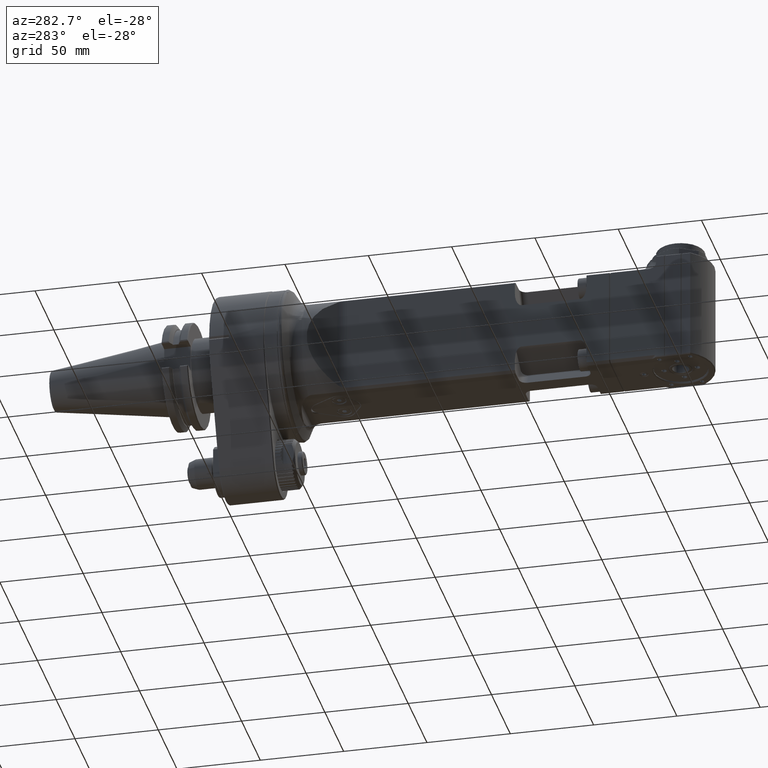
[diagram: clean part render]
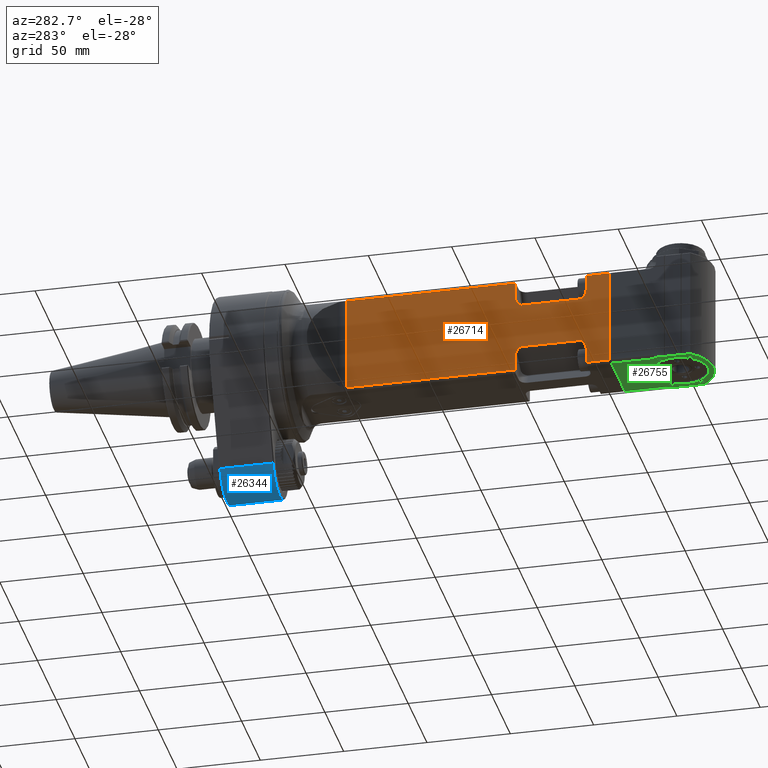
[diagram: same view with three faces highlighted in distinct colors, each labeled with its STEP entity id]
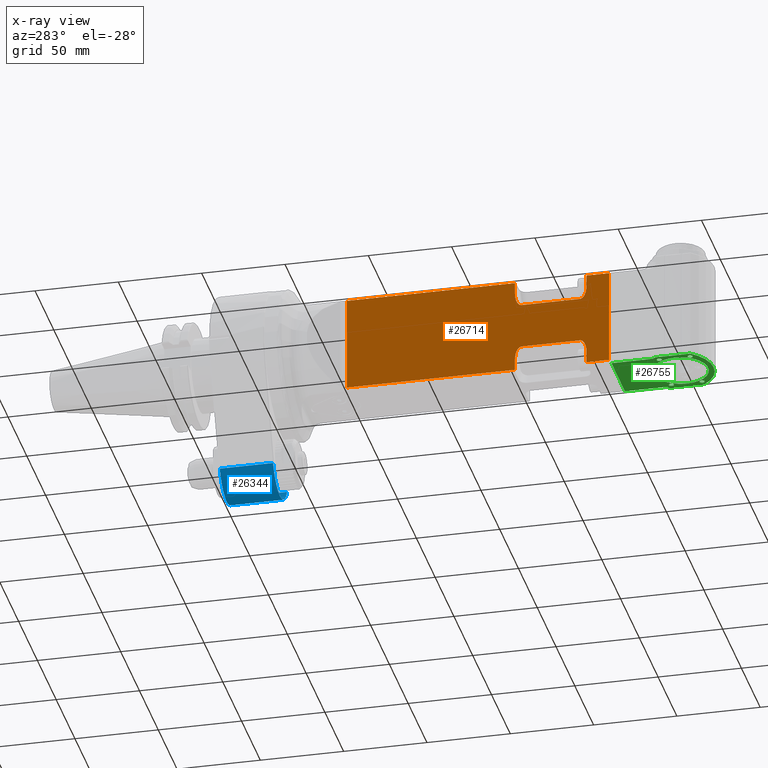
[diagram: x-ray of the same camera — body ghosted, the three highlighted faces saturated]
A machine part, auxiliary view with three faces highlighted in distinct colors.
The next image is the same camera in x-ray (body ghosted, the three faces saturated) — at least one of them is partly hidden behind the body in this view.
Their STEP definitions:

[orange] entity #26714 — the highlighted planar face has unit normal (-1, -0, 0).
#435=ELLIPSE('',#28783,8.03012161947752,4.);
#456=ELLIPSE('',#28867,8.03012161947752,4.);
#457=ELLIPSE('',#28872,8.03012161947752,4.);
#458=ELLIPSE('',#28873,8.03012161947752,4.);
#2738=FACE_OUTER_BOUND('',#4325,.T.);
#4325=EDGE_LOOP('',(#20119,#20120,#20121,#20122,#20123,#20124,#20125,#20126,
#20127,#20128,#20129,#20130,#20131,#20132,#20133,#20134));
#6123=LINE('',#42766,#8700);
#6124=LINE('',#42875,#8701);
#6129=LINE('',#42885,#8706);
#6193=LINE('',#43456,#8770);
#6195=LINE('',#43462,#8772);
#6204=LINE('',#43491,#8781);
#6207=LINE('',#43498,#8784);
#6208=LINE('',#43500,#8785);
#6209=LINE('',#43502,#8786);
#6210=LINE('',#43505,#8787);
#6211=LINE('',#43506,#8788);
#6212=LINE('',#43508,#8789);
#8700=VECTOR('',#33091,100.794398311);
#8701=VECTOR('',#33094,100.794398311);
#8706=VECTOR('',#33101,6.956946049526);
#8770=VECTOR('',#33315,10.);
#8772=VECTOR('',#33321,6.956946049526);
#8781=VECTOR('',#33350,6.956946049526);
#8784=VECTOR('',#33359,10.);
#8785=VECTOR('',#33360,10.);
#8786=VECTOR('',#33361,6.956946049526);
#8787=VECTOR('',#33364,35.);
#8788=VECTOR('',#33365,57.44562646538);
#8789=VECTOR('',#33366,35.);
#11448=VERTEX_POINT('',#42726);
#11451=VERTEX_POINT('',#42763);
#11452=VERTEX_POINT('',#42765);
#11455=VERTEX_POINT('',#42822);
#11457=VERTEX_POINT('',#42878);
#11460=VERTEX_POINT('',#42887);
#11547=VERTEX_POINT('',#43451);
#11548=VERTEX_POINT('',#43455);
#11550=VERTEX_POINT('',#43461);
#11559=VERTEX_POINT('',#43485);
#11560=VERTEX_POINT('',#43487);
#11561=VERTEX_POINT('',#43497);
#11562=VERTEX_POINT('',#43499);
#11563=VERTEX_POINT('',#43501);
#11564=VERTEX_POINT('',#43503);
#11565=VERTEX_POINT('',#43507);
#14540=EDGE_CURVE('',#11452,#11451,#6123,.T.);
#14544=EDGE_CURVE('',#11455,#11448,#6124,.T.);
#14549=EDGE_CURVE('',#11448,#11457,#6129,.T.);
#14550=EDGE_CURVE('',#11460,#11457,#435,.T.);
#14670=EDGE_CURVE('',#11548,#11547,#6193,.T.);
#14673=EDGE_CURVE('',#11548,#11550,#6195,.T.);
#14686=EDGE_CURVE('',#11560,#11559,#456,.T.);
#14688=EDGE_CURVE('',#11451,#11560,#6204,.T.);
#14691=EDGE_CURVE('',#11561,#11547,#6207,.T.);
#14692=EDGE_CURVE('',#11562,#11561,#6208,.T.);
#14693=EDGE_CURVE('',#11562,#11563,#6209,.T.);
#14694=EDGE_CURVE('',#11563,#11564,#457,.T.);
#14695=EDGE_CURVE('',#11460,#11564,#6210,.T.);
#14696=EDGE_CURVE('',#11455,#11452,#6211,.T.);
#14697=EDGE_CURVE('',#11559,#11565,#6212,.T.);
#14698=EDGE_CURVE('',#11565,#11550,#458,.T.);
#20119=ORIENTED_EDGE('',*,*,#14691,.F.);
#20120=ORIENTED_EDGE('',*,*,#14692,.F.);
#20121=ORIENTED_EDGE('',*,*,#14693,.T.);
#20122=ORIENTED_EDGE('',*,*,#14694,.T.);
#20123=ORIENTED_EDGE('',*,*,#14695,.F.);
#20124=ORIENTED_EDGE('',*,*,#14550,.T.);
#20125=ORIENTED_EDGE('',*,*,#14549,.F.);
#20126=ORIENTED_EDGE('',*,*,#14544,.F.);
#20127=ORIENTED_EDGE('',*,*,#14696,.T.);
#20128=ORIENTED_EDGE('',*,*,#14540,.T.);
#20129=ORIENTED_EDGE('',*,*,#14688,.T.);
#20130=ORIENTED_EDGE('',*,*,#14686,.T.);
#20131=ORIENTED_EDGE('',*,*,#14697,.T.);
#20132=ORIENTED_EDGE('',*,*,#14698,.T.);
#20133=ORIENTED_EDGE('',*,*,#14673,.F.);
#20134=ORIENTED_EDGE('',*,*,#14670,.T.);
#25515=PLANE('',#28871);
#26714=ADVANCED_FACE('',(#2738),#25515,.T.);
#28783=AXIS2_PLACEMENT_3D('',#42888,#33104,#33105);
#28867=AXIS2_PLACEMENT_3D('',#43488,#33345,#33346);
#28871=AXIS2_PLACEMENT_3D('',#43496,#33357,#33358);
#28872=AXIS2_PLACEMENT_3D('',#43504,#33362,#33363);
#28873=AXIS2_PLACEMENT_3D('',#43509,#33367,#33368);
#33091=DIRECTION('',(0.,1.,0.));
#33094=DIRECTION('',(0.,1.,0.));
#33101=DIRECTION('',(1.,0.,0.));
#33104=DIRECTION('center_axis',(0.,0.,-1.));
#33105=DIRECTION('ref_axis',(1.,0.,0.));
#33315=DIRECTION('',(0.,1.,0.));
#33321=DIRECTION('',(-1.,0.,0.));
#33345=DIRECTION('center_axis',(0.,0.,-1.));
#33346=DIRECTION('ref_axis',(-1.,0.,0.));
#33350=DIRECTION('',(-1.,0.,0.));
#33357=DIRECTION('center_axis',(0.,0.,1.));
#33358=DIRECTION('ref_axis',(0.,-1.,0.));
#33359=DIRECTION('',(1.,0.,0.));
#33360=DIRECTION('',(0.,1.,0.));
#33361=DIRECTION('',(1.,0.,0.));
#33362=DIRECTION('center_axis',(0.,0.,-1.));
#33363=DIRECTION('ref_axis',(1.,0.,0.));
#33364=DIRECTION('',(0.,1.,0.));
#33365=DIRECTION('',(1.,0.,0.));
#33366=DIRECTION('',(0.,1.,0.));
#33367=DIRECTION('center_axis',(0.,0.,-1.));
#33368=DIRECTION('ref_axis',(-1.,0.,0.));
#42726=CARTESIAN_POINT('',(-28.72281323269,170.,20.));
#42763=CARTESIAN_POINT('',(28.72281323269,170.,20.));
#42765=CARTESIAN_POINT('',(28.72281323269,69.20560168898,20.));
#42766=CARTESIAN_POINT('',(28.72281323269,69.20560168898,20.));
#42822=CARTESIAN_POINT('',(-28.72281323269,69.20560168898,20.));
#42875=CARTESIAN_POINT('',(-28.72281323269,69.20560168898,20.));
#42878=CARTESIAN_POINT('',(-21.76586718316,170.,20.));
#42885=CARTESIAN_POINT('',(-28.72281323269,170.,20.));
#42887=CARTESIAN_POINT('',(-13.73574556369,174.,20.));
#42888=CARTESIAN_POINT('Origin',(-21.765867183134,174.,20.));
#43451=CARTESIAN_POINT('',(28.7228132498403,226.500000003911,19.999999994172));
#43455=CARTESIAN_POINT('',(28.72281323269,213.,20.));
#43456=CARTESIAN_POINT('',(28.7228132326901,-11.35,20.));
#43461=CARTESIAN_POINT('',(21.76586718316,213.,20.));
#43462=CARTESIAN_POINT('',(28.72281323269,213.,20.));
#43485=CARTESIAN_POINT('',(13.73574556369,174.,20.));
#43487=CARTESIAN_POINT('',(21.76586718316,170.,20.));
#43488=CARTESIAN_POINT('Origin',(21.7658671832243,174.,20.));
#43491=CARTESIAN_POINT('',(28.72281323269,170.,20.));
#43496=CARTESIAN_POINT('Origin',(-50.,236.5,20.));
#43497=CARTESIAN_POINT('',(-28.7228132410339,226.500000001929,19.9999999972382));
#43498=CARTESIAN_POINT('',(-25.,226.5,20.));
#43499=CARTESIAN_POINT('',(-28.72281323269,213.,20.));
#43500=CARTESIAN_POINT('',(-28.7228132326901,-11.35,20.));
#43501=CARTESIAN_POINT('',(-21.76586718316,213.,20.));
#43502=CARTESIAN_POINT('',(-28.72281323269,213.,20.));
#43503=CARTESIAN_POINT('',(-13.73574556369,209.,20.));
#43504=CARTESIAN_POINT('Origin',(-21.7658671832243,209.,20.));
#43505=CARTESIAN_POINT('',(-13.73574556369,174.,20.));
#43506=CARTESIAN_POINT('',(-28.72281323269,69.20560168898,20.));
#43507=CARTESIAN_POINT('',(13.73574556369,209.,20.));
#43508=CARTESIAN_POINT('',(13.73574556369,174.,20.));
#43509=CARTESIAN_POINT('Origin',(21.765867183134,209.,20.));

[blue] entity #26344 — the highlighted cylindrical surface (edge-blend (fillet) strip) has radius 20 mm, axis along (0, 1, 0).
#1274=CIRCLE('',#28206,20.);
#1275=CIRCLE('',#28211,20.);
#1981=CYLINDRICAL_SURFACE('',#28217,20.);
#2368=FACE_OUTER_BOUND('',#3914,.T.);
#3914=EDGE_LOOP('',(#18322,#18323,#18324,#18325));
#5733=LINE('',#40233,#8310);
#5738=LINE('',#40244,#8315);
#8310=VECTOR('',#31559,31.99969570828);
#8315=VECTOR('',#31574,31.99969563317);
#11090=VERTEX_POINT('',#40219);
#11091=VERTEX_POINT('',#40223);
#11092=VERTEX_POINT('',#40229);
#11094=VERTEX_POINT('',#40238);
#13866=EDGE_CURVE('',#11091,#11090,#1274,.T.);
#13871=EDGE_CURVE('',#11091,#11092,#5733,.T.);
#13874=EDGE_CURVE('',#11094,#11092,#1275,.T.);
#13877=EDGE_CURVE('',#11094,#11090,#5738,.T.);
#18322=ORIENTED_EDGE('',*,*,#13874,.T.);
#18323=ORIENTED_EDGE('',*,*,#13871,.F.);
#18324=ORIENTED_EDGE('',*,*,#13866,.T.);
#18325=ORIENTED_EDGE('',*,*,#13877,.F.);
#26344=ADVANCED_FACE('',(#2368),#1981,.T.);
#28206=AXIS2_PLACEMENT_3D('',#40224,#31549,#31550);
#28211=AXIS2_PLACEMENT_3D('',#40239,#31566,#31567);
#28217=AXIS2_PLACEMENT_3D('',#40249,#31582,#31583);
#31549=DIRECTION('center_axis',(0.,1.,0.));
#31550=DIRECTION('ref_axis',(0.,0.,-1.));
#31559=DIRECTION('',(-1.323398429703E-13,1.,5.506758566547E-14));
#31566=DIRECTION('center_axis',(0.,-1.,0.));
#31567=DIRECTION('ref_axis',(0.,0.,-1.));
#31574=DIRECTION('',(-5.231420650501E-13,-1.,-2.184939694437E-13));
#31582=DIRECTION('center_axis',(0.,1.,0.));
#31583=DIRECTION('ref_axis',(1.,0.,0.));
#40219=CARTESIAN_POINT('',(-18.4615386000156,0.500150759076893,-72.6923076780329));
#40223=CARTESIAN_POINT('',(18.4615385976401,0.500150760657701,-72.6923076854321));
#40224=CARTESIAN_POINT('Origin',(-3.28625915289E-14,0.5003009281283,-65.));
#40229=CARTESIAN_POINT('',(18.4615384158396,32.4998497148327,-72.6923076096819));
#40233=CARTESIAN_POINT('',(18.46153848395,0.5001587565431,-72.69230763806));
#40238=CARTESIAN_POINT('',(-18.4615384204592,32.499849710546,-72.692307603216));
#40239=CARTESIAN_POINT('Origin',(-6.217247937901E-14,32.49969907187,-65.));
#40244=CARTESIAN_POINT('',(-18.46153848688,32.49985434569,-72.69230763089));
#40249=CARTESIAN_POINT('Origin',(0.,0.,-65.));

[green] entity #26755 — the highlighted planar face has unit normal (0, -0, 1).
#217=B_SPLINE_CURVE_WITH_KNOTS('',3,(#43963,#43964,#43965,#43966,#43967,
#43968,#43969,#43970),.UNSPECIFIED.,.F.,.F.,(4,2,2,4),(-0.220608047044088,
-0.0722425165186051,-0.0328083167547444,-9.99998824080528E-7),
 .UNSPECIFIED.);
#218=B_SPLINE_CURVE_WITH_KNOTS('',3,(#43975,#43976,#43977,#43978,#43979,
#43980,#43981,#43982),.UNSPECIFIED.,.F.,.F.,(4,2,2,4),(-0.27013767302792,
-0.229966556202455,-0.181679652212563,-9.99999950845876E-7),
 .UNSPECIFIED.);
#612=FACE_BOUND('',#4371,.T.);
#613=FACE_BOUND('',#4372,.T.);
#614=FACE_BOUND('',#4373,.T.);
#615=FACE_BOUND('',#4374,.T.);
#616=FACE_BOUND('',#4375,.T.);
#617=FACE_BOUND('',#4376,.T.);
#1540=CIRCLE('',#28935,24.49997200452);
#1541=CIRCLE('',#28936,25.);
#1542=CIRCLE('',#28937,25.);
#1543=CIRCLE('',#28938,16.4998418459631);
#1544=CIRCLE('',#28939,1.5000641056868);
#1545=CIRCLE('',#28940,1.49991745611335);
#1546=CIRCLE('',#28941,1.5000641056868);
#1547=CIRCLE('',#28942,1.49991745611335);
#1548=CIRCLE('',#28943,2.6);
#2779=FACE_OUTER_BOUND('',#4370,.T.);
#4370=EDGE_LOOP('',(#20321,#20322,#20323,#20324,#20325,#20326,#20327,#20328,
#20329,#20330,#20331,#20332,#20333,#20334));
#4371=EDGE_LOOP('',(#20335));
#4372=EDGE_LOOP('',(#20336));
#4373=EDGE_LOOP('',(#20337));
#4374=EDGE_LOOP('',(#20338));
#4375=EDGE_LOOP('',(#20339));
#4376=EDGE_LOOP('',(#20340));
#6192=LINE('',#43442,#8769);
#6277=LINE('',#43947,#8854);
#6278=LINE('',#43950,#8855);
#6279=LINE('',#43952,#8856);
#6280=LINE('',#43955,#8857);
#6281=LINE('',#43957,#8858);
#6282=LINE('',#43959,#8859);
#6283=LINE('',#43971,#8860);
#6284=LINE('',#43973,#8861);
#8769=VECTOR('',#33296,10.);
#8854=VECTOR('',#33551,5.894487847162);
#8855=VECTOR('',#33556,10.);
#8856=VECTOR('',#33557,5.082350731503);
#8857=VECTOR('',#33560,5.082350731503);
#8858=VECTOR('',#33561,10.);
#8859=VECTOR('',#33562,5.894487847162);
#8860=VECTOR('',#33565,24.02465338137);
#8861=VECTOR('',#33566,10.);
#11543=VERTEX_POINT('',#43439);
#11544=VERTEX_POINT('',#43441);
#11614=VERTEX_POINT('',#43896);
#11620=VERTEX_POINT('',#43922);
#11626=VERTEX_POINT('',#43940);
#11627=VERTEX_POINT('',#43946);
#11628=VERTEX_POINT('',#43951);
#11629=VERTEX_POINT('',#43953);
#11630=VERTEX_POINT('',#43956);
#11631=VERTEX_POINT('',#43958);
#11632=VERTEX_POINT('',#43960);
#11633=VERTEX_POINT('',#43962);
#11634=VERTEX_POINT('',#43972);
#11635=VERTEX_POINT('',#43974);
#11636=VERTEX_POINT('',#43984);
#11637=VERTEX_POINT('',#43986);
#11638=VERTEX_POINT('',#43988);
#11639=VERTEX_POINT('',#43990);
#11640=VERTEX_POINT('',#43992);
#11641=VERTEX_POINT('',#43994);
#14663=EDGE_CURVE('',#11544,#11543,#6192,.T.);
#14797=EDGE_CURVE('',#11627,#11626,#6277,.T.);
#14799=EDGE_CURVE('',#11626,#11620,#6278,.T.);
#14800=EDGE_CURVE('',#11620,#11628,#6279,.T.);
#14801=EDGE_CURVE('',#11628,#11629,#1540,.T.);
#14802=EDGE_CURVE('',#11629,#11614,#6280,.T.);
#14803=EDGE_CURVE('',#11614,#11630,#6281,.T.);
#14804=EDGE_CURVE('',#11630,#11631,#6282,.T.);
#14805=EDGE_CURVE('',#11631,#11632,#1541,.T.);
#14806=EDGE_CURVE('',#11632,#11633,#217,.T.);
#14807=EDGE_CURVE('',#11544,#11633,#6283,.T.);
#14808=EDGE_CURVE('',#11543,#11634,#6284,.T.);
#14809=EDGE_CURVE('',#11634,#11635,#218,.T.);
#14810=EDGE_CURVE('',#11635,#11627,#1542,.T.);
#14811=EDGE_CURVE('',#11636,#11636,#1543,.T.);
#14812=EDGE_CURVE('',#11637,#11637,#1544,.T.);
#14813=EDGE_CURVE('',#11638,#11638,#1545,.T.);
#14814=EDGE_CURVE('',#11639,#11639,#1546,.T.);
#14815=EDGE_CURVE('',#11640,#11640,#1547,.T.);
#14816=EDGE_CURVE('',#11641,#11641,#1548,.T.);
#20321=ORIENTED_EDGE('',*,*,#14799,.T.);
#20322=ORIENTED_EDGE('',*,*,#14800,.T.);
#20323=ORIENTED_EDGE('',*,*,#14801,.T.);
#20324=ORIENTED_EDGE('',*,*,#14802,.T.);
#20325=ORIENTED_EDGE('',*,*,#14803,.T.);
#20326=ORIENTED_EDGE('',*,*,#14804,.T.);
#20327=ORIENTED_EDGE('',*,*,#14805,.T.);
#20328=ORIENTED_EDGE('',*,*,#14806,.T.);
#20329=ORIENTED_EDGE('',*,*,#14807,.F.);
#20330=ORIENTED_EDGE('',*,*,#14663,.T.);
#20331=ORIENTED_EDGE('',*,*,#14808,.T.);
#20332=ORIENTED_EDGE('',*,*,#14809,.T.);
#20333=ORIENTED_EDGE('',*,*,#14810,.T.);
#20334=ORIENTED_EDGE('',*,*,#14797,.T.);
#20335=ORIENTED_EDGE('',*,*,#14811,.T.);
#20336=ORIENTED_EDGE('',*,*,#14812,.T.);
#20337=ORIENTED_EDGE('',*,*,#14813,.T.);
#20338=ORIENTED_EDGE('',*,*,#14814,.T.);
#20339=ORIENTED_EDGE('',*,*,#14815,.T.);
#20340=ORIENTED_EDGE('',*,*,#14816,.T.);
#25544=PLANE('',#28934);
#26755=ADVANCED_FACE('',(#2779,#612,#613,#614,#615,#616,#617),#25544,.F.);
#28934=AXIS2_PLACEMENT_3D('',#43949,#33554,#33555);
#28935=AXIS2_PLACEMENT_3D('',#43954,#33558,#33559);
#28936=AXIS2_PLACEMENT_3D('',#43961,#33563,#33564);
#28937=AXIS2_PLACEMENT_3D('',#43983,#33567,#33568);
#28938=AXIS2_PLACEMENT_3D('',#43985,#33569,#33570);
#28939=AXIS2_PLACEMENT_3D('',#43987,#33571,#33572);
#28940=AXIS2_PLACEMENT_3D('',#43989,#33573,#33574);
#28941=AXIS2_PLACEMENT_3D('',#43991,#33575,#33576);
#28942=AXIS2_PLACEMENT_3D('',#43993,#33577,#33578);
#28943=AXIS2_PLACEMENT_3D('',#43995,#33579,#33580);
#33296=DIRECTION('',(0.,0.,-1.));
#33551=DIRECTION('',(0.,1.,0.));
#33554=DIRECTION('center_axis',(-1.,0.,0.));
#33555=DIRECTION('ref_axis',(0.,-1.,0.));
#33556=DIRECTION('',(0.,1.,0.));
#33557=DIRECTION('',(0.,1.,0.));
#33558=DIRECTION('center_axis',(1.,0.,0.));
#33559=DIRECTION('ref_axis',(0.,0.605402762450778,-0.79591927682207));
#33560=DIRECTION('',(0.,-1.,0.));
#33561=DIRECTION('',(0.,-1.,0.));
#33562=DIRECTION('',(0.,-1.,0.));
#33563=DIRECTION('center_axis',(1.,0.,0.));
#33564=DIRECTION('ref_axis',(0.,-0.625779513886492,0.77999999999999));
#33565=DIRECTION('',(3.777262799236E-8,0.999999999999999,2.615986369712E-9));
#33566=DIRECTION('',(0.,1.,0.));
#33567=DIRECTION('center_axis',(1.,0.,0.));
#33568=DIRECTION('ref_axis',(0.,-0.643584627942568,-0.765374958223762));
#33569=DIRECTION('center_axis',(-1.,0.,0.));
#33570=DIRECTION('ref_axis',(0.,0.,-1.));
#33571=DIRECTION('center_axis',(-1.,0.,0.));
#33572=DIRECTION('ref_axis',(0.,0.,-1.));
#33573=DIRECTION('center_axis',(-1.,0.,0.));
#33574=DIRECTION('ref_axis',(0.,0.,-1.));
#33575=DIRECTION('center_axis',(-1.,0.,0.));
#33576=DIRECTION('ref_axis',(0.,0.,-1.));
#33577=DIRECTION('center_axis',(-1.,0.,0.));
#33578=DIRECTION('ref_axis',(0.,0.,-1.));
#33579=DIRECTION('center_axis',(-1.,0.,0.));
#33580=DIRECTION('ref_axis',(0.,1.,0.));
#43439=CARTESIAN_POINT('',(29.9999999996394,227.499999999758,-18.027756379344));
#43441=CARTESIAN_POINT('',(29.999999706473,227.499999940664,18.027756297259));
#43442=CARTESIAN_POINT('',(30.,227.5,-25.));
#43896=CARTESIAN_POINT('',(30.,270.,19.5));
#43922=CARTESIAN_POINT('',(30.,270.,-19.5));
#43940=CARTESIAN_POINT('',(30.,260.,-19.5));
#43946=CARTESIAN_POINT('',(30.,254.1055121528,-19.5));
#43947=CARTESIAN_POINT('',(30.,254.1055121528,-19.5));
#43949=CARTESIAN_POINT('Origin',(30.,285.25,-50.));
#43950=CARTESIAN_POINT('',(30.,260.,-19.5));
#43951=CARTESIAN_POINT('',(30.,275.0823507315,-19.5));
#43952=CARTESIAN_POINT('',(30.,270.,-19.5));
#43953=CARTESIAN_POINT('',(30.,275.0823507315,19.5));
#43954=CARTESIAN_POINT('Origin',(30.,260.25,5.528910662633E-14));
#43955=CARTESIAN_POINT('',(30.,275.0823507315,19.5));
#43956=CARTESIAN_POINT('',(30.,260.,19.5));
#43957=CARTESIAN_POINT('',(30.,270.,19.5));
#43958=CARTESIAN_POINT('',(30.,254.1055121528,19.5));
#43959=CARTESIAN_POINT('',(30.,260.,19.5));
#43960=CARTESIAN_POINT('',(30.,253.660384218396,19.1343740134714));
#43961=CARTESIAN_POINT('Origin',(30.,269.75,0.));
#43962=CARTESIAN_POINT('',(30.0000000107892,251.5246524306,18.0277560687419));
#43963=CARTESIAN_POINT('Ctrl Pts',(30.,253.660384154878,19.1343740890085));
#43964=CARTESIAN_POINT('Ctrl Pts',(30.,253.196846508766,18.744596590469));
#43965=CARTESIAN_POINT('Ctrl Pts',(30.0000000028144,252.684554342843,18.4041848507026));
#43966=CARTESIAN_POINT('Ctrl Pts',(30.0000000028144,252.109158039829,18.1547350003449));
#43967=CARTESIAN_POINT('Ctrl Pts',(30.0000000000407,251.980948044409,18.1075113018713));
#43968=CARTESIAN_POINT('Ctrl Pts',(30.0000000000407,251.747563253767,18.0472736312975));
#43969=CARTESIAN_POINT('Ctrl Pts',(30.,251.634011053627,18.0277558619006));
#43970=CARTESIAN_POINT('Ctrl Pts',(30.,251.5246524306,18.0277557783802));
#43971=CARTESIAN_POINT('',(29.99999904846,227.4999990492,18.02775611487));
#43972=CARTESIAN_POINT('',(29.99999999982,251.5246532152,-18.02775637648));
#43973=CARTESIAN_POINT('',(30.,152.65,-18.0277563773199));
#43974=CARTESIAN_POINT('',(30.,253.66038414933,-19.1343738708155));
#43975=CARTESIAN_POINT('Ctrl Pts',(30.,251.5246532152,-18.0277563763069));
#43976=CARTESIAN_POINT('Ctrl Pts',(30.,251.634009715839,-18.0277563680413));
#43977=CARTESIAN_POINT('Ctrl Pts',(30.0000000000411,251.747569201971,-18.0472751689977));
#43978=CARTESIAN_POINT('Ctrl Pts',(30.0000000000411,251.980952819559,-18.1075128115266));
#43979=CARTESIAN_POINT('Ctrl Pts',(30.,252.109163735435,-18.1547371705929));
#43980=CARTESIAN_POINT('Ctrl Pts',(30.,252.684579692712,-18.4041969955733));
#43981=CARTESIAN_POINT('Ctrl Pts',(30.,253.196875012474,-18.744620212884));
#43982=CARTESIAN_POINT('Ctrl Pts',(30.,253.660384127451,-19.134373896834));
#43983=CARTESIAN_POINT('Origin',(30.,269.75,0.));
#43984=CARTESIAN_POINT('',(30.,265.,16.4998418459631));
#43985=CARTESIAN_POINT('Origin',(30.,265.,-2.13162820728E-14));
#43986=CARTESIAN_POINT('',(30.,255.75,17.5215340756968));
#43987=CARTESIAN_POINT('Origin',(30.,255.75,16.02146997001));
#43988=CARTESIAN_POINT('',(30.,255.75,-14.5215525138966));
#43989=CARTESIAN_POINT('Origin',(30.,255.75,-16.02146997001));
#43990=CARTESIAN_POINT('',(30.,274.25,-14.5214058643232));
#43991=CARTESIAN_POINT('Origin',(30.,274.25,-16.02146997001));
#43992=CARTESIAN_POINT('',(30.,274.25,17.5213874261234));
#43993=CARTESIAN_POINT('Origin',(30.,274.25,16.02146997001));
#43994=CARTESIAN_POINT('',(30.0000000000005,243.,2.59999999999952));
#43995=CARTESIAN_POINT('Origin',(30.,243.,0.));